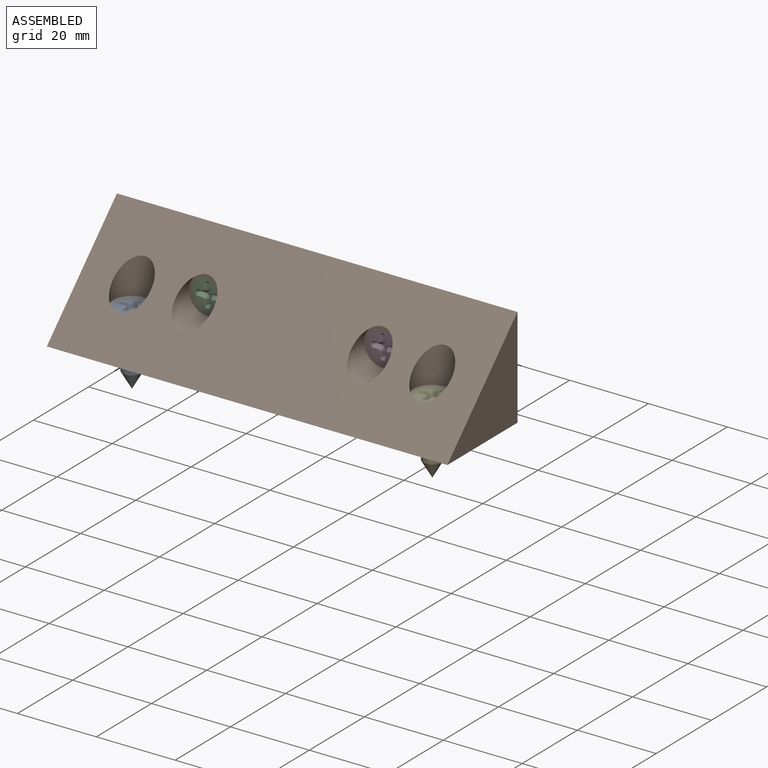
[diagram: assembled view]
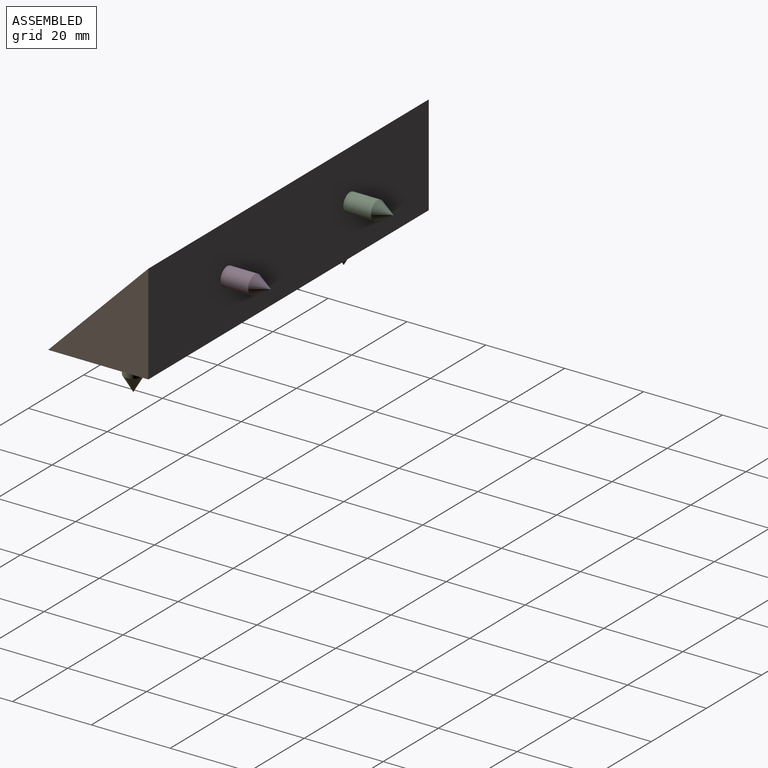
[diagram: assembled view, second angle]
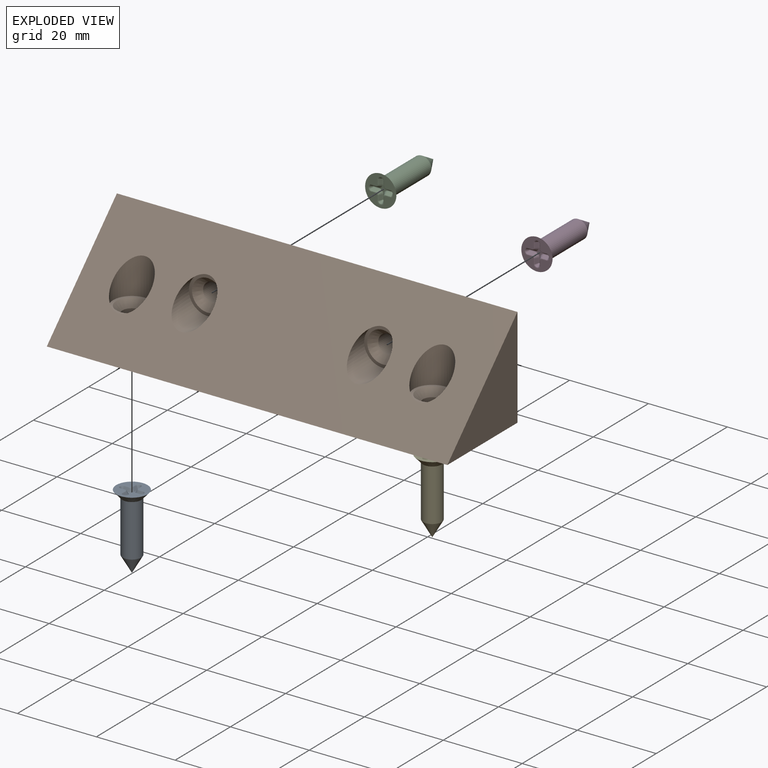
[diagram: exploded view]
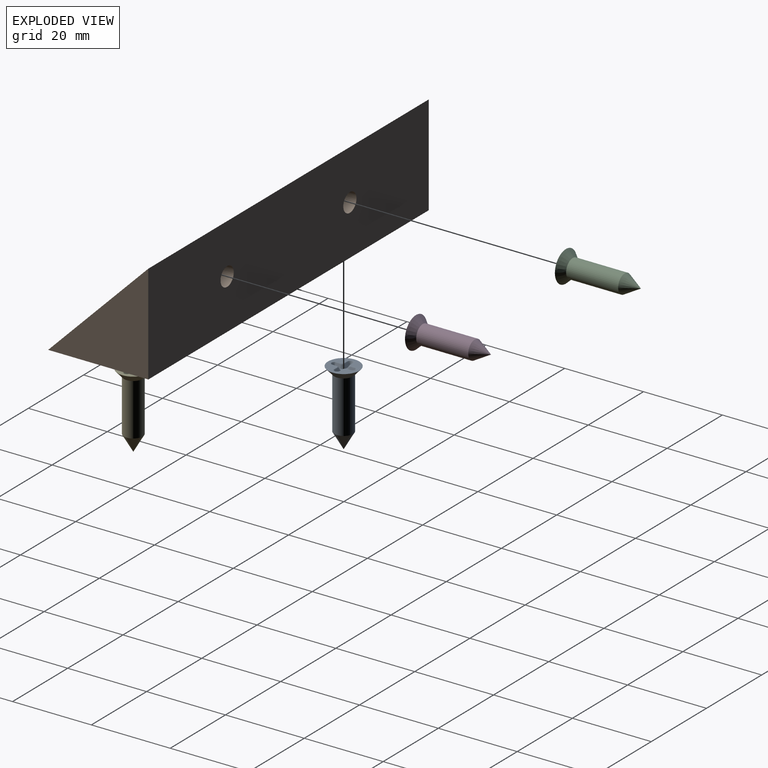
[diagram: exploded view, second angle]
ASSEMBLY  parts=5 mates=4
PART A: 49 faces, bbox 8x8x19.1 mm
  f0: plane 7.95x7.95mm, normal (0,0,1), area 30.2mm2, adj f3,f33,f34,f35,f36,f37,f38,f39
  f1: cone r=0mm half-angle=30deg, axis (0,0,1), area 35.6mm2, adj f2
  f2: cylinder r=2.38mm len=13.19mm, axis (0,0,1), area 197.4mm2, adj f1,f3
  f3: cone r=2.38mm half-angle=42.5deg, axis (0,0,1), area 46.9mm2, adj f0,f2
  f4: plane 1.36x0.77mm, normal (0,0.87,0.5), area 1.1mm2, adj f5,f19,f30,f45
  f5: cone r=0.51mm half-angle=30deg, axis (0,0,-1), area 1.1mm2, adj f4,f6,f29,f43
  f6: plane 1.36x0.77mm, normal (0.87,0,0.5), area 1.1mm2, adj f5,f7,f26,f41
  f7: cone r=0.74mm half-angle=30deg, axis (0,0,1), area 0.8mm2, adj f6,f8,f22,f26,f39
  f8: plane 1.36x0.77mm, normal (-0.87,0,0.5), area 1.1mm2, adj f7,f9,f22,f37
  f9: cone r=0.51mm half-angle=30deg, axis (0,0,-1), area 1.1mm2, adj f8,f10,f25,f35
  f10: plane 1.36x0.77mm, normal (0,0.87,0.5), area 1.1mm2, adj f9,f11,f21,f33
  f11: cone r=0.74mm half-angle=30deg, axis (0,0,1), area 0.8mm2, adj f10,f12,f21,f24,f34
  f12: plane 1.36x0.77mm, normal (0,-0.87,0.5), area 1.1mm2, adj f11,f13,f24,f36
  f13: cone r=0.51mm half-angle=30deg, axis (0,0,-1), area 1.1mm2, adj f12,f14,f28,f38
  f14: plane 1.36x0.77mm, normal (-0.87,0,0.5), area 1.1mm2, adj f13,f15,f23,f40
  f15: cone r=0.74mm half-angle=30deg, axis (0,0,1), area 0.8mm2, adj f14,f16,f23,f27,f42
  f16: plane 1.36x0.77mm, normal (0.87,0,0.5), area 1.1mm2, adj f15,f17,f27,f44
  f17: cone r=0.51mm half-angle=30deg, axis (0,0,-1), area 1.1mm2, adj f16,f18,f31,f46
  f18: plane 1.36x0.77mm, normal (0,-0.87,0.5), area 1.1mm2, adj f17,f19,f32,f48
  f19: cone r=0.74mm half-angle=30deg, axis (0,0,1), area 0.8mm2, adj f4,f18,f30,f32,f47
  f20: plane 2.18x2.18mm, normal (0,0,1), area 1.2mm2, adj f25,f28,f29,f31
  f21: cylinder r=0.2mm len=1.25mm, axis (-1,0,0), area 0.3mm2, adj f10,f11,f24,f25
  f22: cylinder r=0.2mm len=1.25mm, axis (0,-1,0), area 0.3mm2, adj f7,f8,f25,f26
  f23: cylinder r=0.2mm len=1.25mm, axis (0,-1,0), area 0.3mm2, adj f14,f15,f27,f28
  f24: cylinder r=0.2mm len=1.25mm, axis (1,0,0), area 0.3mm2, adj f11,f12,f21,f28
  f25: torus R=1.21mm, axis (0,0,1), area 0.4mm2, adj f9,f20,f21,f22,f28,f29
  f26: cylinder r=0.2mm len=1.25mm, axis (0,1,0), area 0.3mm2, adj f6,f7,f22,f29
  f27: cylinder r=0.2mm len=1.25mm, axis (0,1,0), area 0.3mm2, adj f15,f16,f23,f31
  f28: torus R=1.21mm, axis (0,0,1), area 0.4mm2, adj f13,f20,f23,f24,f25,f31
  f29: torus R=1.21mm, axis (0,0,1), area 0.4mm2, adj f5,f20,f25,f26,f30,f31
  f30: cylinder r=0.2mm len=1.25mm, axis (-1,0,0), area 0.3mm2, adj f4,f19,f29,f32
  f31: torus R=1.21mm, axis (0,0,1), area 0.4mm2, adj f17,f20,f27,f28,f29,f32
  f32: cylinder r=0.2mm len=1.25mm, axis (1,0,0), area 0.3mm2, adj f18,f19,f30,f31
  f33: bspline ~1.44x0.33mm, area 0.6mm2, adj f0,f10,f34,f35
  f34: bspline ~1.84x0.78mm, area 0.8mm2, adj f0,f11,f33,f36
  f35: bspline ~0.62x0.62mm, area 0.3mm2, adj f0,f9,f33,f37
  f36: bspline ~1.44x0.33mm, area 0.6mm2, adj f0,f12,f34,f38
  f37: bspline ~1.39x0.33mm, area 0.6mm2, adj f0,f8,f35,f39
  f38: bspline ~0.62x0.62mm, area 0.3mm2, adj f0,f13,f36,f40
  f39: bspline ~1.89x0.86mm, area 0.8mm2, adj f0,f7,f37,f41
  f40: bspline ~1.44x0.33mm, area 0.6mm2, adj f0,f14,f38,f42
  f41: bspline ~1.39x0.33mm, area 0.6mm2, adj f0,f6,f39,f43
  f42: bspline ~1.89x0.86mm, area 0.8mm2, adj f0,f15,f40,f44
  f43: bspline ~0.62x0.62mm, area 0.3mm2, adj f0,f5,f41,f45
  f44: bspline ~1.44x0.33mm, area 0.6mm2, adj f0,f16,f42,f46
  f45: bspline ~1.39x0.33mm, area 0.6mm2, adj f0,f4,f43,f47
  f46: bspline ~0.62x0.62mm, area 0.3mm2, adj f0,f17,f44,f48
  f47: bspline ~1.89x0.86mm, area 0.8mm2, adj f0,f19,f45,f48
  f48: bspline ~1.39x0.33mm, area 0.6mm2, adj f0,f18,f46,f47
PART B: 21 faces, bbox 103.6x27.4x27.4 mm
  f0: plane 101.6x25.4mm, normal (0,0,-1), area 2545mm2, adj f1,f2,f3,f4,f9,f11
  f1: plane 101.6x25.4mm, normal (0,1,0), area 2545mm2, adj f0,f2,f3,f4,f17,f19
  f2: plane 103.6x27.4mm, normal (0,-0.71,0.71), area 3246.5mm2, adj f0,f1,f3,f4,f5,f7,f13,f15
  f3: plane 25.4x25.4mm, normal (1,0,0), area 322.6mm2, adj f0,f1,f2
  f4: plane 25.4x25.4mm, normal (-1,0,0), area 322.6mm2, adj f0,f1,f2
  f5: cylinder r=4.76mm len=9.55mm, axis (0,0,1), area 138mm2, adj f2,f6
  f6: plane 9.53x9.53mm, normal (0,0,1), area 21.8mm2, adj f5,f12
  f7: cylinder r=4.76mm len=9.55mm, axis (0,0,1), area 138mm2, adj f2,f8
  f8: plane 9.53x9.53mm, normal (0,0,1), area 21.8mm2, adj f7,f10
  f9: cylinder r=2.38mm len=6.19mm, axis (0,0,1), area 92.6mm2, adj f0,f10
  f10: cone r=2.38mm half-angle=42.5deg, axis (0,0,1), area 46.9mm2, adj f8,f9
  f11: cylinder r=2.38mm len=6.19mm, axis (0,0,1), area 92.6mm2, adj f0,f12
  f12: cone r=2.38mm half-angle=42.5deg, axis (0,0,1), area 46.9mm2, adj f6,f11
  f13: cylinder r=4.76mm len=9.59mm, axis (0,-1,0), area 142.9mm2, adj f2,f14
  f14: plane 9.53x9.53mm, normal (0,-1,0), area 21.8mm2, adj f13,f20
  f15: cylinder r=4.76mm len=9.59mm, axis (0,-1,0), area 142.9mm2, adj f2,f16
  f16: plane 9.53x9.53mm, normal (0,-1,0), area 21.8mm2, adj f15,f18
  f17: cylinder r=2.38mm len=6.19mm, axis (0,-1,0), area 92.6mm2, adj f1,f18
  f18: cone r=2.38mm half-angle=42.5deg, axis (0,-1,0), area 46.9mm2, adj f16,f17
  f19: cylinder r=2.38mm len=6.19mm, axis (0,-1,0), area 92.6mm2, adj f1,f20
  f20: cone r=2.38mm half-angle=42.5deg, axis (0,-1,0), area 46.9mm2, adj f14,f19
PART C: same geometry as A
PART D: same geometry as A
PART E: same geometry as A
PLACE A t=(-38.1,-12.7,-11.13)mm
PLACE B at identity fixed
PLACE C rot(axis=(1,0,0),90deg) t=(-22.22,11.13,12.7)mm
PLACE D rot(axis=(1,0,0),90deg) t=(22.22,11.13,12.7)mm
PLACE E t=(38.1,-12.7,-11.13)mm
MATE fastened C.f2 <-> B.f15  axis (0,-1,0) through (-22.22,-7.92,12.7)mm
MATE fastened A.f2 <-> B.f7  axis (0,0,1) through (-38.1,-12.7,7.92)mm
MATE fastened B.f13 <-> D.f2  axis (0,-1,0) through (22.22,-7.92,12.7)mm
MATE fastened E.f2 <-> B.f5  axis (0,0,1) through (38.1,-12.7,7.92)mm
